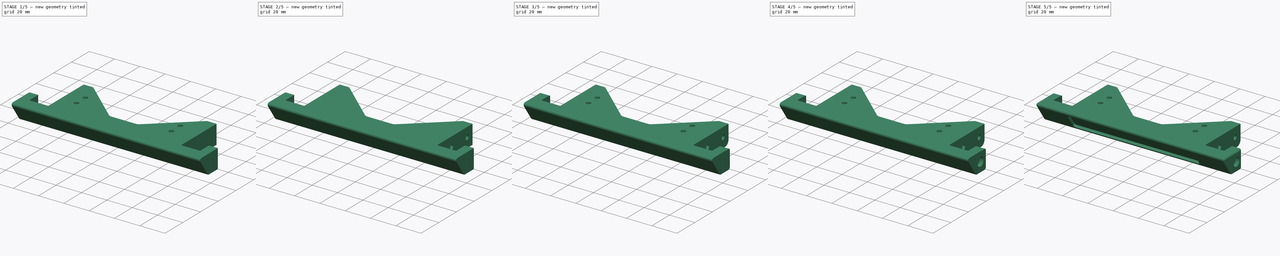
[diagram: build sequence overview — one tinted view per stage of 5, left to right]
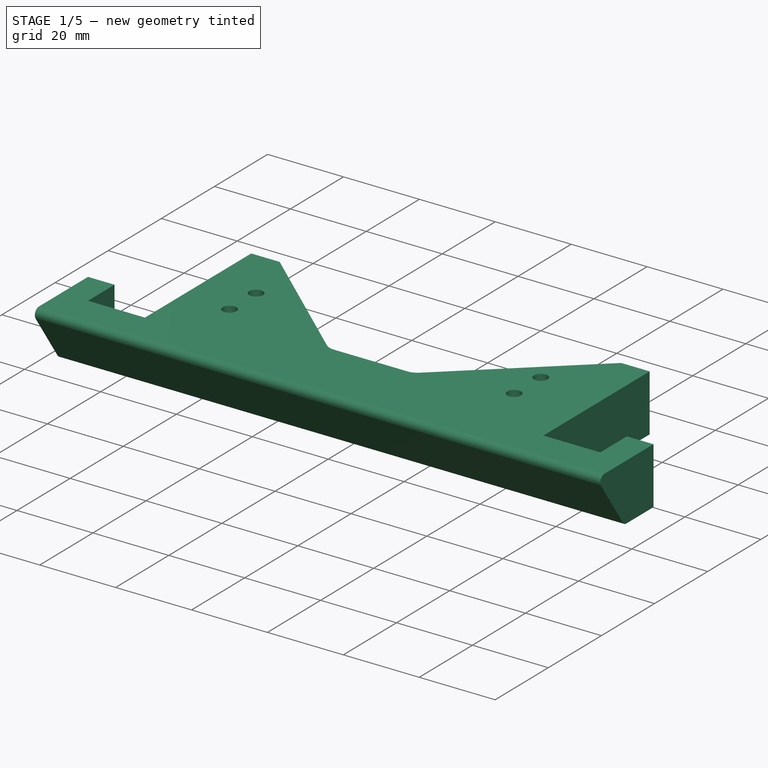
[diagram: stage 1 of 5 — iso view after this stage's code; geometry added in this stage tinted green]
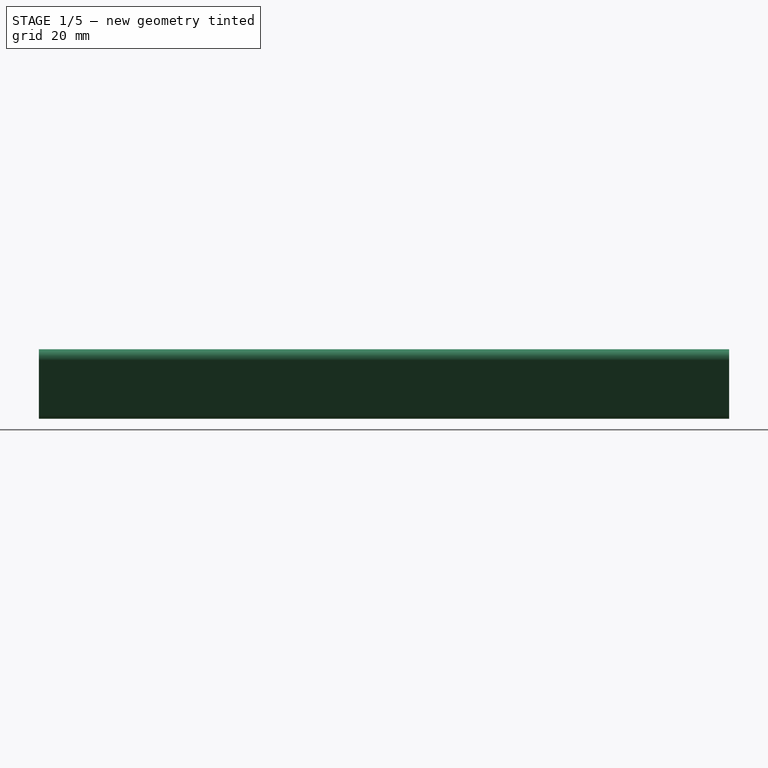
[diagram: stage 1 of 5 — front view after this stage's code; geometry added in this stage tinted green]
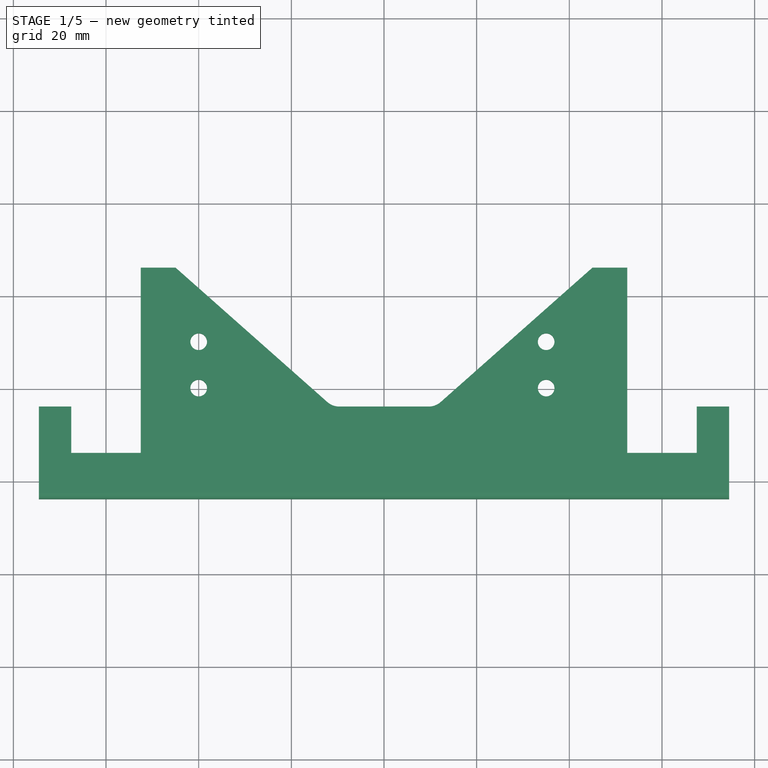
[diagram: stage 1 of 5 — top view after this stage's code; geometry added in this stage tinted green]
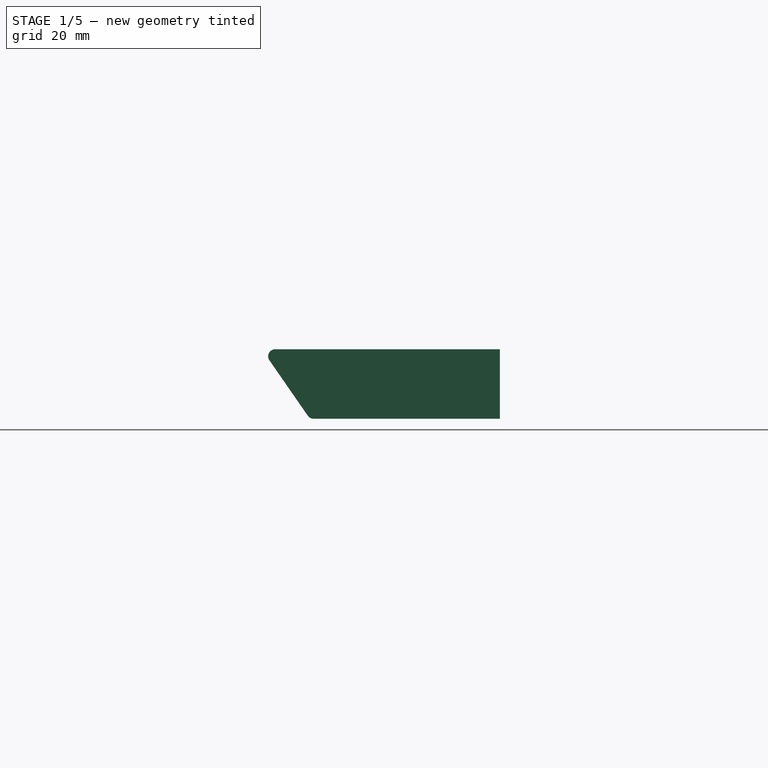
[diagram: stage 1 of 5 — right view after this stage's code; geometry added in this stage tinted green]
FCSTD DOCUMENT  (FreeCAD 0.15R4671 (Git))
Label: ZBedFrontCap
License: All rights reserved
LicenseURL: http://en.wikipedia.org/wiki/All_rights_reserved
objects: Sketcher::SketchObject×14, PartDesign::Pocket×12, Part::Feature×10, PartDesign::Fillet×9, PartDesign::Pad×2
note: 61 computed .brp shape members not serialized (recipe doc carries the construction recipe); baked Part::Feature solids carry a one-line shape summary decoded from their .brp

FEATURE [Part::Feature] Part__Feature  label="OB1515_270mm"
  Placement = pos=(-60,-44,42.5) rot=(1,0,0;1.5708rad)
  shape: bbox 15 x 270 x 15 mm, 158 faces (baked)
FEATURE [Part::Feature] Part__Feature001  label="OB1515_270mm001"
  Placement = pos=(60,-44,42.5) rot=(1,0,0;1.5708rad)
  shape: bbox 15 x 270 x 15 mm, 158 faces (baked)
FEATURE [Part::Feature] LM8UU_8mm_Linear_Bearing
  Placement = pos=(-60,-28,26) rot=(0,1,0;1.5708rad)
  shape: bbox 15 x 15 x 24 mm, 34 faces (baked)
FEATURE [Part::Feature] LM8UU_8mm_Linear_Bearing001
  Placement = pos=(60,-28,26) rot=(0,1,0;1.5708rad)
  shape: bbox 15 x 15 x 24 mm, 34 faces (baked)
FEATURE [Part::Feature] LM8UU_8mm_Linear_Bearing002
  Placement = pos=(-60,-28,53) rot=(0,1,0;1.5708rad)
  shape: bbox 15 x 15 x 24 mm, 34 faces (baked)
FEATURE [Part::Feature] LM8UU_8mm_Linear_Bearing003
  Placement = pos=(60,-28,53) rot=(0,1,0;1.5708rad)
  shape: bbox 15 x 15 x 24 mm, 34 faces (baked)
FEATURE [Part::Feature] Part__Feature002  label="ZBed"
  shape: bbox 325.9 x 65.72 x 128.5 mm, 185 faces (baked)
FEATURE [Part::Feature] Part__Feature003  label="ZBedBearingCapL"
  shape: bbox 33.5 x 13.5 x 55 mm, 30 faces (baked)
FEATURE [Part::Feature] Part__Feature004  label="ZBedBearingCapR"
  shape: bbox 33.5 x 13.5 x 55 mm, 30 faces (baked)
FEATURE [Sketcher::SketchObject] Sketch
  Placement = pos=(0,0,35) rot=(0,0,1;0rad)
  sketch-geometry (16):
    g0: LineSegment StartX=74.5 StartY=-304 StartZ=0 EndX=74.5 EndY=-324 EndZ=0
    g1: LineSegment StartX=74.5 StartY=-324 StartZ=0 EndX=-74.5 EndY=-324 EndZ=0
    g2: LineSegment StartX=-74.5 StartY=-324 StartZ=0 EndX=-74.5 EndY=-304 EndZ=0
    g3: LineSegment StartX=-52.5 StartY=-274 StartZ=0 EndX=-45.5 EndY=-274 EndZ=0
    g4: LineSegment StartX=-45.5 StartY=-274 StartZ=0 EndX=-45.5 EndY=-304 EndZ=0
    g5: LineSegment StartX=-45.5 StartY=-304 StartZ=0 EndX=45.5 EndY=-304 EndZ=0
    g6: LineSegment StartX=45.5 StartY=-304 StartZ=0 EndX=45.5 EndY=-274 EndZ=0
    g7: LineSegment StartX=45.5 StartY=-274 StartZ=0 EndX=52.5 EndY=-274 EndZ=0
    g8: LineSegment StartX=52.5 StartY=-274 StartZ=0 EndX=52.5 EndY=-314 EndZ=0
    g9: LineSegment StartX=-74.5 StartY=-304 StartZ=0 EndX=-67.5 EndY=-304 EndZ=0
    g10: LineSegment StartX=-67.5 StartY=-304 StartZ=0 EndX=-67.5 EndY=-314 EndZ=0
    g11: LineSegment StartX=-67.5 StartY=-314 StartZ=0 EndX=-52.5 EndY=-314 EndZ=0
    g12: LineSegment StartX=-52.5 StartY=-314 StartZ=0 EndX=-52.5 EndY=-274 EndZ=0
    g13: LineSegment StartX=52.5 StartY=-314 StartZ=0 EndX=67.5 EndY=-314 EndZ=0
    g14: LineSegment StartX=67.5 StartY=-314 StartZ=0 EndX=67.5 EndY=-304 EndZ=0
    g15: LineSegment StartX=67.5 StartY=-304 StartZ=0 EndX=74.5 EndY=-304 EndZ=0
  constraints (44):
    c: Coincident(g0,g1)
    c: Coincident(g1,g2)
    c: Horizontal(g1)
    c: Vertical(g0)
    c: Vertical(g2)
    c: Coincident(g3,g4)
    c: Coincident(g4,g5)
    c: Coincident(g5,g6)
    c: Coincident(g6,g7)
    c: Coincident(g7,g8)
    c: Horizontal(g3)
    c: Horizontal(g7)
    c: Horizontal(g5)
    c: Vertical(g4)
    c: Vertical(g6)
    c: Vertical(g8)
    c: DistanceY(g3,g6) = 0
    c: Coincident(g9,g10)
    c: Coincident(g10,g11)
    c: Coincident(g11,g12)
    c: Coincident(g3,g12)
    c: Coincident(g2,g9)
    c: Horizontal(g11)
    c: Vertical(g10)
    c: Vertical(g12)
    c: Coincident(g13,g14)
    c: Coincident(g14,g15)
    c: Coincident(g0,g15)
    c: Horizontal(g13)
    c: Horizontal(g15)
    c: Vertical(g14)
    c: DistanceY(g11,g8) = 0
    c: DistanceX(g11,g10) = -15
    c: DistanceX(g13,g13) = 15
    c: DistanceX(g0,g14) = -7
    c: DistanceX(g9,g2) = -7
    c: DistanceX(g3,g3) = -7
    c: DistanceX(g7,g6) = -7
    c: Coincident(g13,g8)
    c: DistanceX(g8,g11) = -105
    c: DistanceY(g4,g3) = 30
    c: DistanceY(g4,g9) = 0
    c: Horizontal(g9)
    c: DistanceY(g2,g1) = -20
FEATURE [PartDesign::Pad] Pad
  Length = 15
  Length2 = 100
  Placement = pos=(0,0,35) rot=(0,0,1;0rad)
  Sketch = -> Sketch
  Type = 0
FEATURE [Sketcher::SketchObject] Sketch001
  Placement = pos=(-74.5,0,35) rot=(0.57735,-0.57735,-0.57735;2.0944rad)
  Support = -> Pad [Face3]
  sketch-geometry (5):
    g0: LineSegment StartX=315 StartY=-1 StartZ=0 EndX=315 EndY=0 EndZ=0
    g1: LineSegment StartX=315 StartY=0 StartZ=0 EndX=324 EndY=13 EndZ=0
    g2: LineSegment StartX=324 StartY=13 StartZ=0 EndX=325 EndY=13 EndZ=0
    g3: LineSegment StartX=325 StartY=13 StartZ=0 EndX=325 EndY=-1 EndZ=0
    g4: LineSegment StartX=325 StartY=-1 StartZ=0 EndX=315 EndY=-1 EndZ=0
  constraints (5):
    c: Coincident(g0,g1)
    c: Coincident(g1,g2)
    c: Coincident(g2,g3)
    c: Coincident(g3,g4)
    c: Coincident(g4,g0)
FEATURE [PartDesign::Pocket] Pocket
  Length = 5
  Placement = pos=(0,0,35) rot=(0,0,1;0rad)
  Sketch = -> Sketch001
  Type = 1
FEATURE [PartDesign::Fillet] Fillet
  Base = -> Pocket [Edge6,Edge22,Edge24]
  Placement = pos=(0,0,35) rot=(0,0,1;0rad)
  Radius = 1.5
FEATURE [Sketcher::SketchObject] Sketch002
  Placement = pos=(-45.5,0,35) rot=(0.57735,0.57735,0.57735;2.0944rad)
  Support = -> Fillet [Face22]
  sketch-geometry (2):
    g0: Circle CenterX=-280 CenterY=7.5 CenterZ=0 NormalX=0 NormalY=0 NormalZ=1 Radius=1.8
    g1: Circle CenterX=-297.5 CenterY=7.5 CenterZ=0 NormalX=0 NormalY=0 NormalZ=1 Radius=1.8
  constraints (2):
    c: Radius(g0) = 1.8
    c: Equal(g0,g1)
FEATURE [PartDesign::Pocket] Pocket001
  Length = 5
  Placement = pos=(0,0,35) rot=(0,0,1;0rad)
  Sketch = -> Sketch002
  Type = 1
FEATURE [Part::Feature] Fillet009  label="ZBedFrontCap_1"
  shape: bbox 149 x 50.33 x 15.33 mm, 96 faces (baked)
FEATURE [Sketcher::SketchObject] Sketch013
  Placement = pos=(0,0,35) rot=(1,0,0;3.14159rad)
  Support = -> Fillet009 [Face1]
  sketch-geometry (8):
    g0: LineSegment StartX=52.25 StartY=314 StartZ=0 EndX=67.75 EndY=314 EndZ=0
    g1: LineSegment StartX=67.75 StartY=314 StartZ=0 EndX=67.75 EndY=271.601 EndZ=0
    g2: LineSegment StartX=67.75 StartY=271.601 StartZ=0 EndX=52.25 EndY=271.601 EndZ=0
    g3: LineSegment StartX=52.25 StartY=271.601 StartZ=0 EndX=52.25 EndY=314 EndZ=0
    g4: LineSegment StartX=-67.75 StartY=314 StartZ=0 EndX=-52.25 EndY=314 EndZ=0
    g5: LineSegment StartX=-52.25 StartY=314 StartZ=0 EndX=-52.25 EndY=269.123 EndZ=0
    g6: LineSegment StartX=-52.25 StartY=269.123 StartZ=0 EndX=-67.75 EndY=269.123 EndZ=0
    g7: LineSegment StartX=-67.75 StartY=269.123 StartZ=0 EndX=-67.75 EndY=314 EndZ=0
  constraints (16):
    c: Coincident(g0,g1)
    c: Coincident(g1,g2)
    c: Coincident(g2,g3)
    c: Coincident(g3,g0)
    c: Horizontal(g0)
    c: Horizontal(g2)
    c: Vertical(g1)
    c: Vertical(g3)
    c: Coincident(g4,g5)
    c: Coincident(g5,g6)
    c: Coincident(g6,g7)
    c: Coincident(g7,g4)
    c: Horizontal(g4)
    c: Horizontal(g6)
    c: Vertical(g5)
    c: Vertical(g7)
FEATURE [PartDesign::Pocket] Pocket011  label="ZBedFrontCap"
  Length = 5
  Sketch = -> Sketch013
  Type = 1
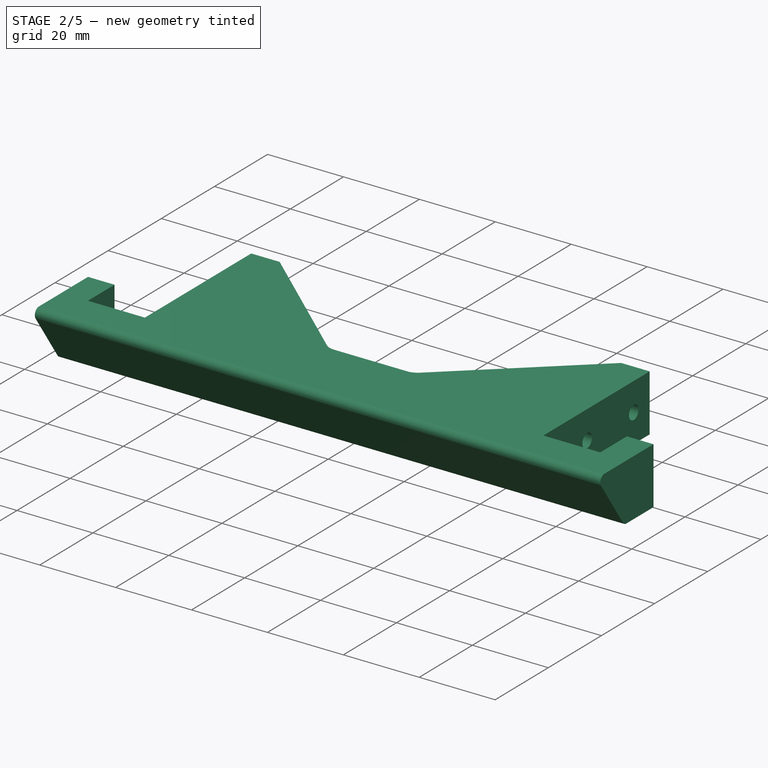
[diagram: stage 2 of 5 — iso view after this stage's code; geometry added in this stage tinted green]
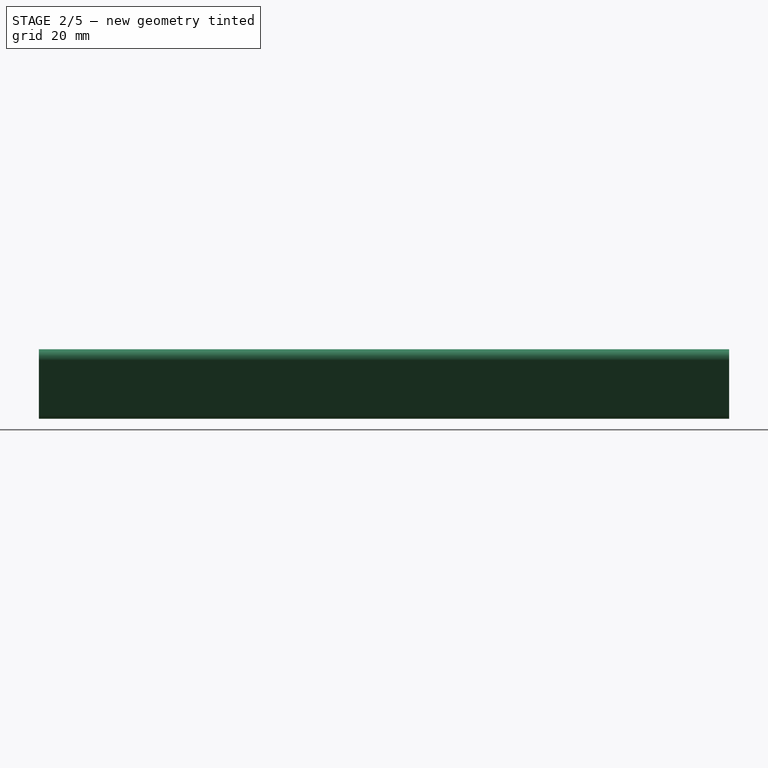
[diagram: stage 2 of 5 — front view after this stage's code; geometry added in this stage tinted green]
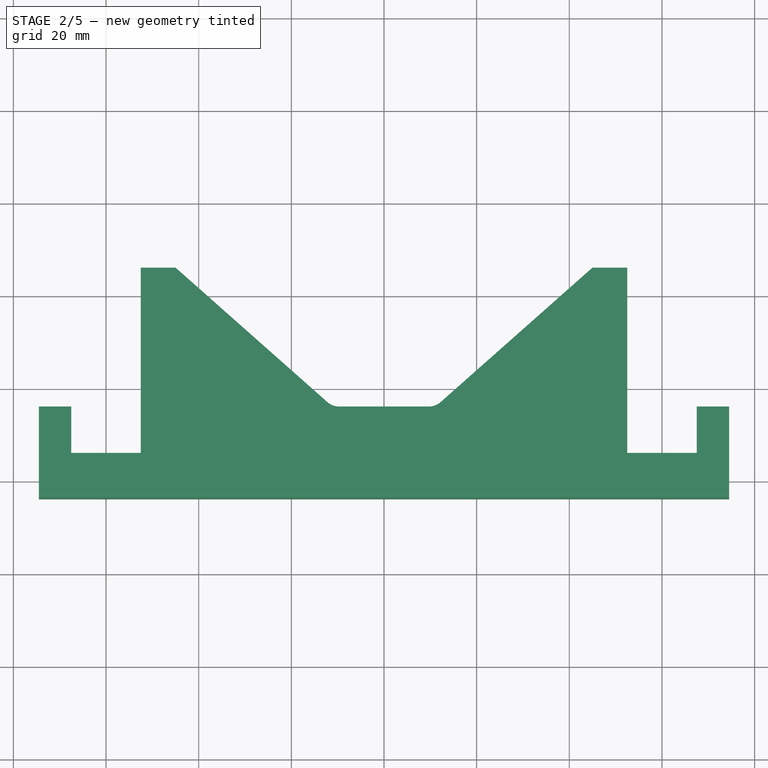
[diagram: stage 2 of 5 — top view after this stage's code; geometry added in this stage tinted green]
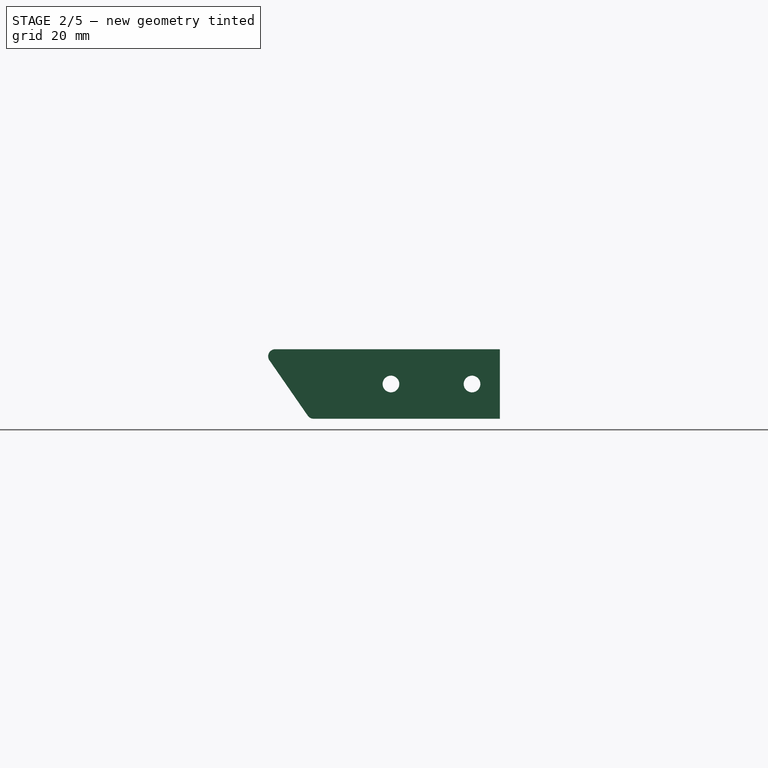
[diagram: stage 2 of 5 — right view after this stage's code; geometry added in this stage tinted green]
FEATURE [Sketcher::SketchObject] Sketch003
  Placement = pos=(45.5,0,35) rot=(0.57735,-0.57735,-0.57735;2.0944rad)
  Support = -> Pocket001 [Face19]
  sketch-geometry (2):
    g0: Circle CenterX=280 CenterY=7.5 CenterZ=0 NormalX=0 NormalY=0 NormalZ=1 Radius=1.8
    g1: Circle CenterX=297.5 CenterY=7.5 CenterZ=0 NormalX=0 NormalY=0 NormalZ=1 Radius=1.8
  constraints (2):
    c: Radius(g0) = 1.8
    c: Equal(g0,g1)
FEATURE [PartDesign::Pocket] Pocket002
  Length = 5
  Placement = pos=(0,0,35) rot=(0,0,1;0rad)
  Sketch = -> Sketch003
  Type = 1
FEATURE [Sketcher::SketchObject] Sketch004
  Placement = pos=(45.5,0,35) rot=(0.57735,-0.57735,-0.57735;2.0944rad)
  Support = -> Pocket002 [Face19]
  sketch-geometry (2):
    g0: Circle CenterX=280 CenterY=7.5 CenterZ=0 NormalX=0 NormalY=0 NormalZ=1 Radius=3.5
    g1: Circle CenterX=297.5 CenterY=7.5 CenterZ=0 NormalX=0 NormalY=0 NormalZ=1 Radius=3.5
  constraints (2):
    c: Radius(g0) = 3.5
    c: Equal(g0,g1)
FEATURE [PartDesign::Pocket] Pocket003
  Length = 3
  Placement = pos=(0,0,35) rot=(0,0,1;0rad)
  Sketch = -> Sketch004
  Type = 0
FEATURE [Sketcher::SketchObject] Sketch005
  Placement = pos=(-45.5,0,35) rot=(0.57735,0.57735,0.57735;2.0944rad)
  Support = -> Pocket003 [Face22]
  sketch-geometry (2):
    g0: Circle CenterX=-297.5 CenterY=7.5 CenterZ=0 NormalX=0 NormalY=0 NormalZ=1 Radius=3.5
    g1: Circle CenterX=-280 CenterY=7.5 CenterZ=0 NormalX=0 NormalY=0 NormalZ=1 Radius=3.5
  constraints (2):
    c: Radius(g0) = 3.5
    c: Equal(g0,g1)
FEATURE [PartDesign::Pocket] Pocket004
  Length = 3
  Placement = pos=(0,0,35) rot=(0,0,1;0rad)
  Sketch = -> Sketch005
  Type = 0
FEATURE [Sketcher::SketchObject] Sketch006
  Placement = pos=(0,0,50) rot=(0,0,1;0rad)
  Support = -> Pocket004 [Face6]
  sketch-geometry (8):
    g0: LineSegment StartX=-47 StartY=-274 StartZ=0 EndX=-47 EndY=-305 EndZ=0
    g1: LineSegment StartX=-47 StartY=-305 StartZ=0 EndX=-10 EndY=-305 EndZ=0
    g2: LineSegment StartX=-10 StartY=-305 StartZ=0 EndX=-45 EndY=-274 EndZ=0
    g3: LineSegment StartX=-45 StartY=-274 StartZ=0 EndX=-47 EndY=-274 EndZ=0
    g4: LineSegment StartX=10 StartY=-305 StartZ=0 EndX=47 EndY=-305 EndZ=0
    g5: LineSegment StartX=47 StartY=-305 StartZ=0 EndX=47 EndY=-274 EndZ=0
    g6: LineSegment StartX=47 StartY=-274 StartZ=0 EndX=45 EndY=-274 EndZ=0
    g7: LineSegment StartX=45 StartY=-274 StartZ=0 EndX=10 EndY=-305 EndZ=0
  constraints (8):
    c: Coincident(g0,g1)
    c: Coincident(g1,g2)
    c: Coincident(g2,g3)
    c: Coincident(g0,g3)
    c: Coincident(g4,g5)
    c: Coincident(g5,g6)
    c: Coincident(g6,g7)
    c: Coincident(g7,g4)
FEATURE [PartDesign::Pad] Pad001
  Length = 3
  Length2 = 100
  Placement = pos=(0,0,35) rot=(0,0,1;0rad)
  Reversed = true
  Sketch = -> Sketch006
  Type = 0
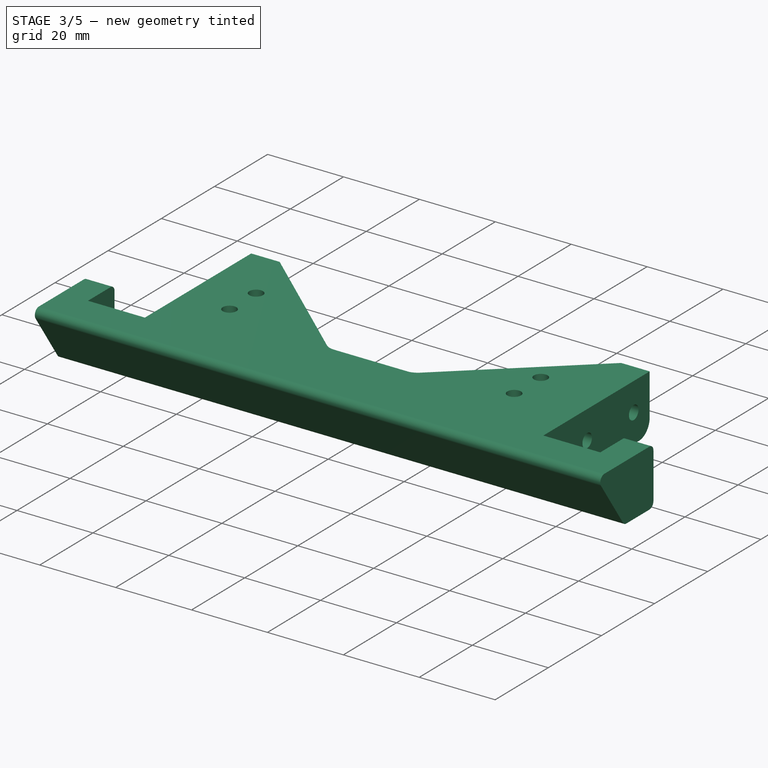
[diagram: stage 3 of 5 — iso view after this stage's code; geometry added in this stage tinted green]
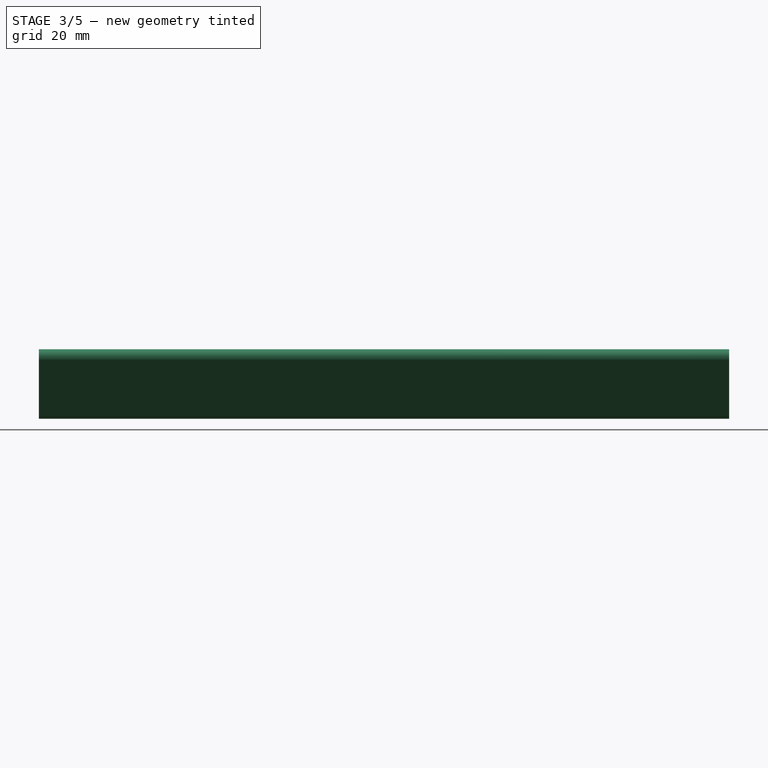
[diagram: stage 3 of 5 — front view after this stage's code; geometry added in this stage tinted green]
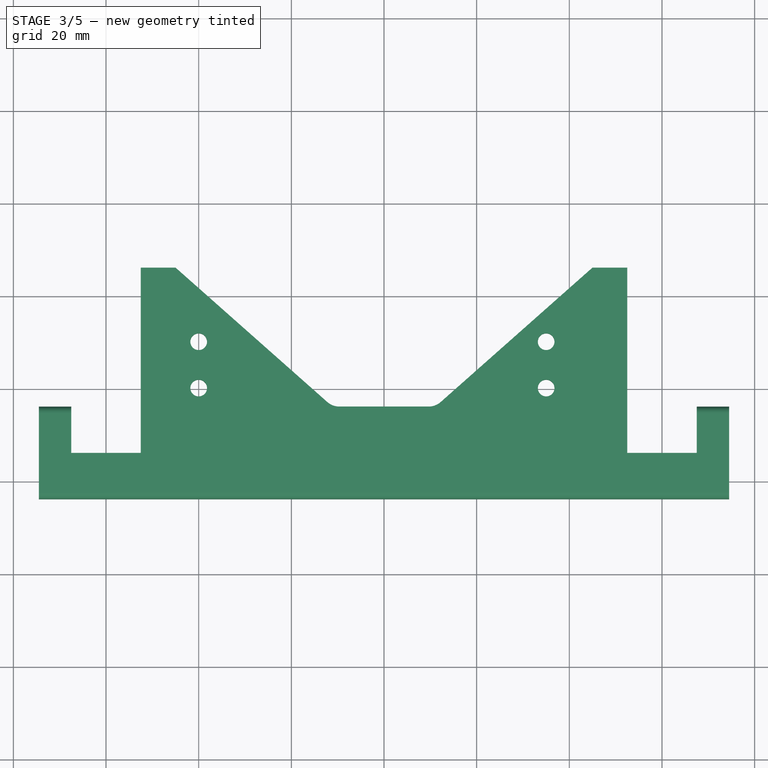
[diagram: stage 3 of 5 — top view after this stage's code; geometry added in this stage tinted green]
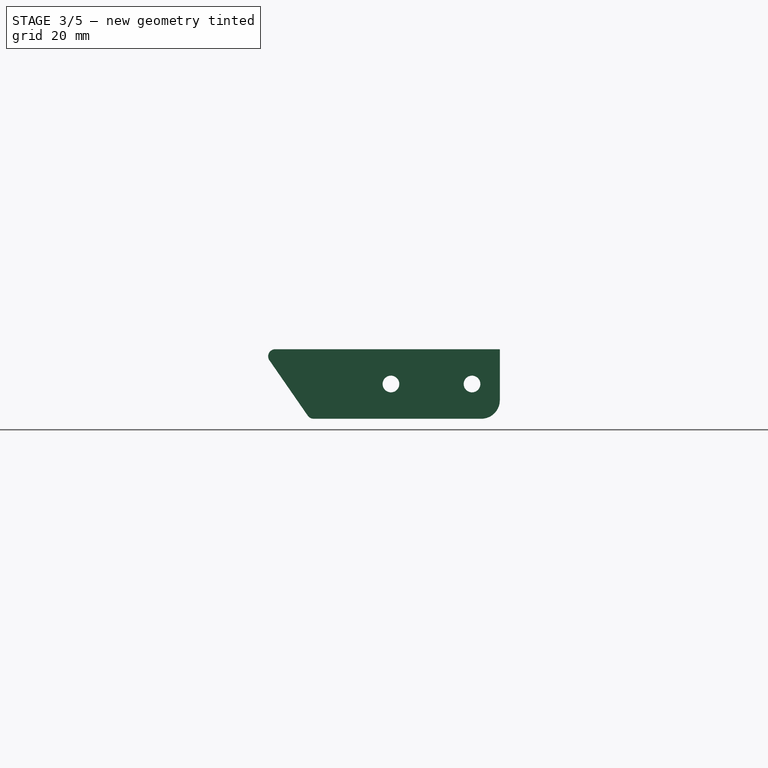
[diagram: stage 3 of 5 — right view after this stage's code; geometry added in this stage tinted green]
FEATURE [PartDesign::Fillet] Fillet001
  Base = -> Pad001 [Edge62,Edge64]
  Placement = pos=(0,0,35) rot=(0,0,1;0rad)
  Radius = 4
FEATURE [Sketcher::SketchObject] Sketch007
  Placement = pos=(0,0,47) rot=(1,0,0;3.14159rad)
  Support = -> Fillet001 [Face5]
  sketch-geometry (4):
    g0: Circle CenterX=-40 CenterY=300 CenterZ=0 NormalX=0 NormalY=0 NormalZ=1 Radius=1.8
    g1: Circle CenterX=35 CenterY=300 CenterZ=0 NormalX=0 NormalY=0 NormalZ=1 Radius=1.8
    g2: Circle CenterX=-40 CenterY=290 CenterZ=0 NormalX=0 NormalY=0 NormalZ=1 Radius=1.8
    g3: Circle CenterX=35 CenterY=290 CenterZ=0 NormalX=0 NormalY=0 NormalZ=1 Radius=1.8
  constraints (4):
    c: Radius(g0) = 1.8
    c: Equal(g0,g1)
    c: Radius(g3) = 1.8
    c: Equal(g3,g2)
FEATURE [PartDesign::Pocket] Pocket005
  Length = 5
  Placement = pos=(0,0,35) rot=(0,0,1;0rad)
  Sketch = -> Sketch007
  Type = 0
FEATURE [PartDesign::Fillet] Fillet002
  Base = -> Pocket005 [Edge70,Edge68]
  Placement = pos=(0,0,35) rot=(0,0,1;0rad)
  Radius = 4
FEATURE [PartDesign::Fillet] Fillet003
  Base = -> Fillet002 [Edge21,Edge86,Edge14,Edge64]
  Placement = pos=(0,0,35) rot=(0,0,1;0rad)
  Radius = 1.5
FEATURE [PartDesign::Fillet] Fillet004
  Base = -> Fillet003 [Edge65,Edge51]
  Placement = pos=(0,0,35) rot=(0,0,1;0rad)
  Radius = 2
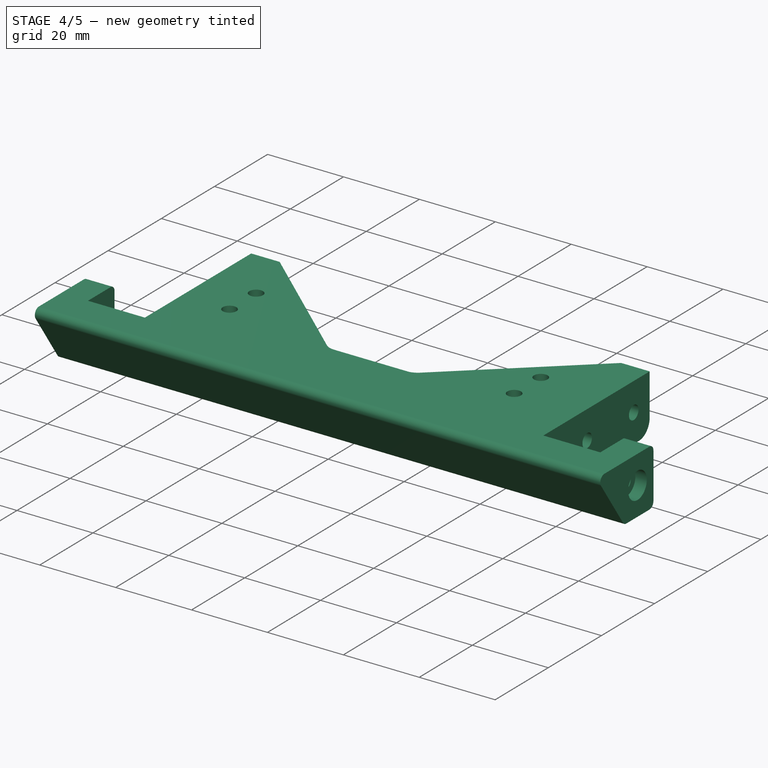
[diagram: stage 4 of 5 — iso view after this stage's code; geometry added in this stage tinted green]
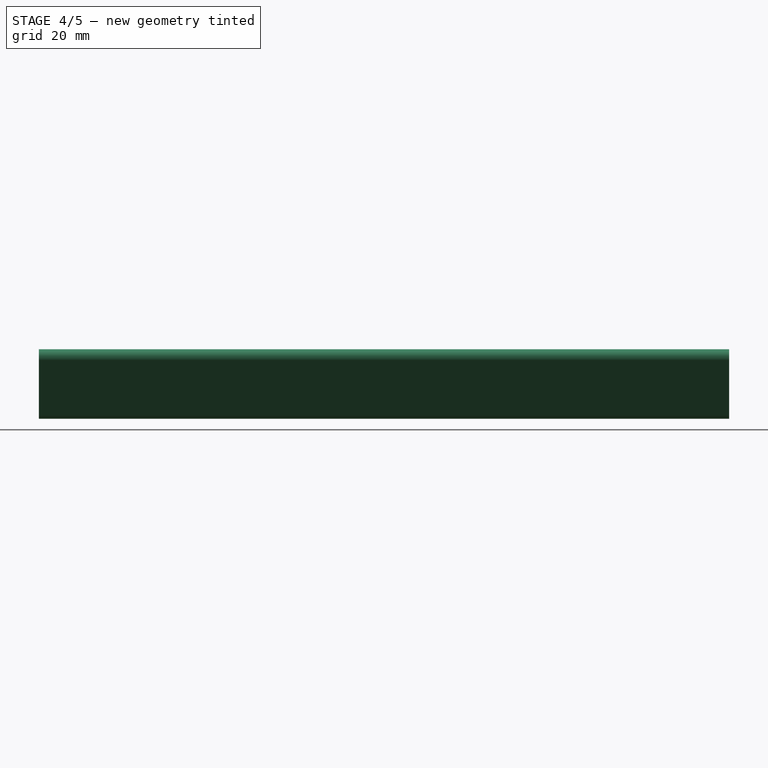
[diagram: stage 4 of 5 — front view after this stage's code; geometry added in this stage tinted green]
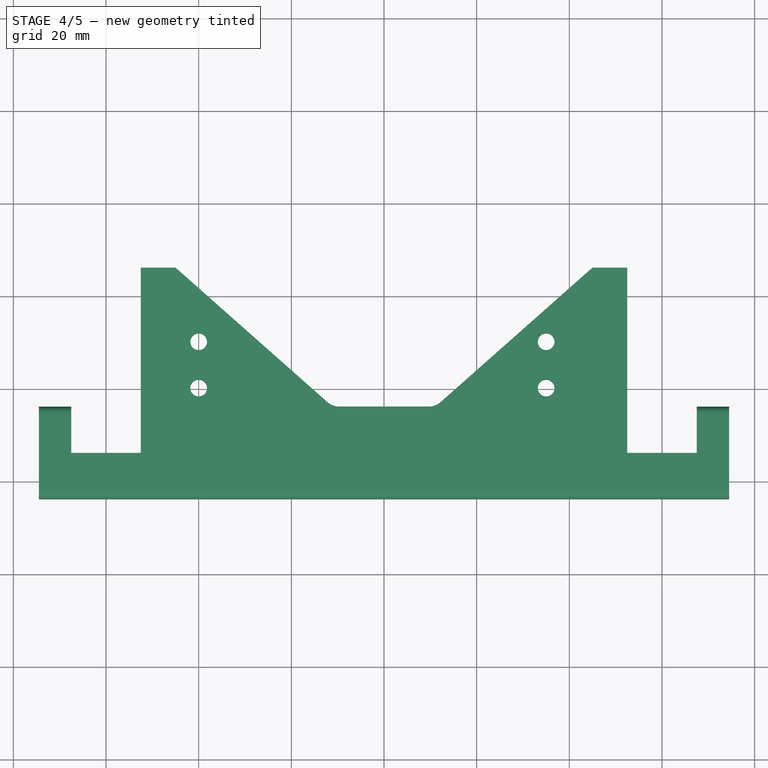
[diagram: stage 4 of 5 — top view after this stage's code; geometry added in this stage tinted green]
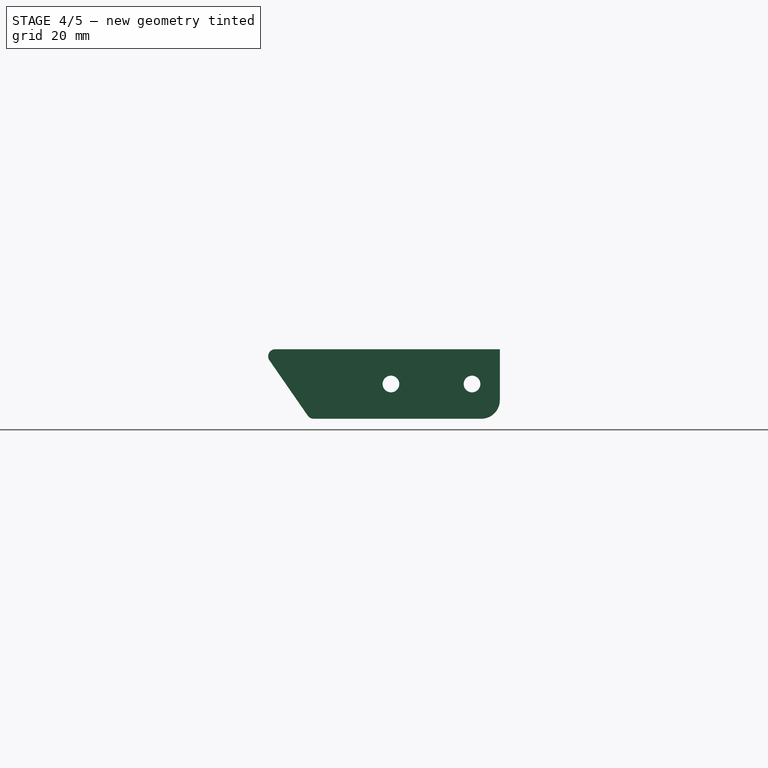
[diagram: stage 4 of 5 — right view after this stage's code; geometry added in this stage tinted green]
FEATURE [Sketcher::SketchObject] Sketch008
  Placement = pos=(-74.5,0,35) rot=(0.57735,-0.57735,-0.57735;2.0944rad)
  Support = -> Fillet004 [Face18]
  sketch-geometry (1):
    g0: Circle CenterX=310 CenterY=7.5 CenterZ=0 NormalX=0 NormalY=0 NormalZ=1 Radius=1.8
  constraints (1):
    c: Radius(g0) = 1.8
FEATURE [PartDesign::Pocket] Pocket006
  Length = 10
  Placement = pos=(0,0,35) rot=(0,0,1;0rad)
  Sketch = -> Sketch008
  Type = 0
FEATURE [Sketcher::SketchObject] Sketch009
  Placement = pos=(74.5,0,35) rot=(0.57735,0.57735,0.57735;2.0944rad)
  Support = -> Pocket006 [Face14]
  sketch-geometry (1):
    g0: Circle CenterX=-310 CenterY=7.5 CenterZ=0 NormalX=0 NormalY=0 NormalZ=1 Radius=1.8
  constraints (1):
    c: Radius(g0) = 1.8
FEATURE [PartDesign::Pocket] Pocket007
  Length = 10
  Placement = pos=(0,0,35) rot=(0,0,1;0rad)
  Sketch = -> Sketch009
  Type = 0
FEATURE [Sketcher::SketchObject] Sketch010
  Placement = pos=(74.5,0,35) rot=(0.57735,0.57735,0.57735;2.0944rad)
  Support = -> Pocket007 [Face14]
  sketch-geometry (1):
    g0: Circle CenterX=-310 CenterY=7.5 CenterZ=0 NormalX=0 NormalY=0 NormalZ=1 Radius=3.5
  constraints (1):
    c: Radius(g0) = 3.5
FEATURE [PartDesign::Pocket] Pocket008
  Length = 3
  Placement = pos=(0,0,35) rot=(0,0,1;0rad)
  Sketch = -> Sketch010
  Type = 0
FEATURE [Sketcher::SketchObject] Sketch011
  Placement = pos=(-74.5,0,35) rot=(0.57735,-0.57735,-0.57735;2.0944rad)
  Support = -> Pocket008 [Face18]
  sketch-geometry (1):
    g0: Circle CenterX=310 CenterY=7.5 CenterZ=0 NormalX=0 NormalY=0 NormalZ=1 Radius=3.5
  constraints (1):
    c: Radius(g0) = 3.5
FEATURE [PartDesign::Pocket] Pocket009
  Length = 3
  Placement = pos=(0,0,35) rot=(0,0,1;0rad)
  Sketch = -> Sketch011
  Type = 0
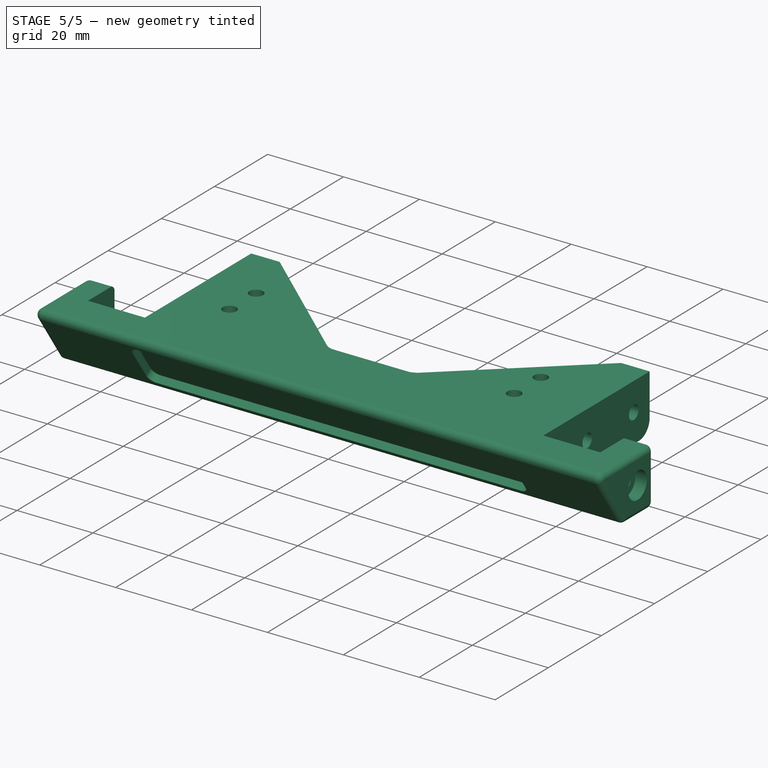
[diagram: stage 5 of 5 — iso view after this stage's code; geometry added in this stage tinted green]
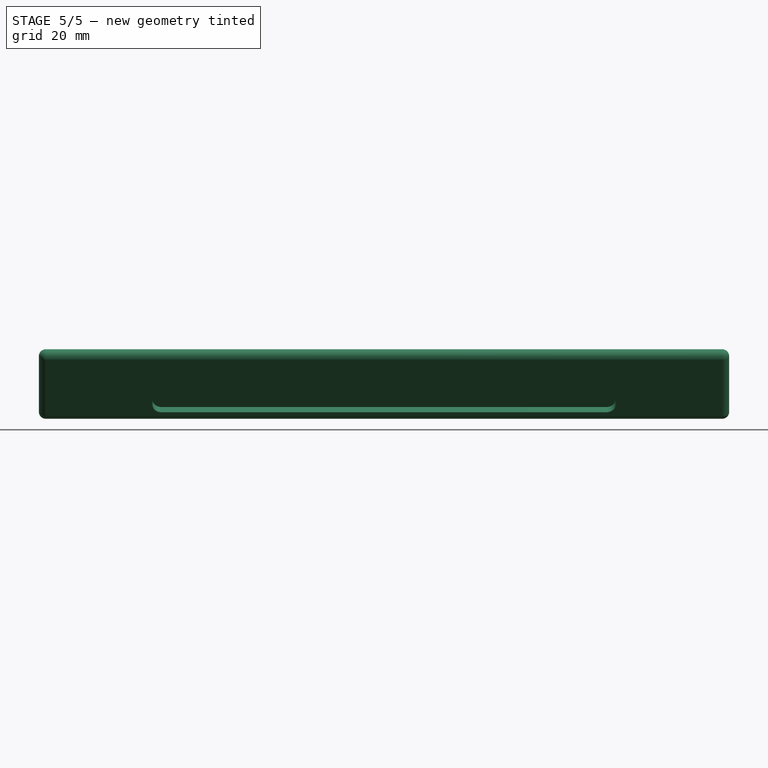
[diagram: stage 5 of 5 — front view after this stage's code; geometry added in this stage tinted green]
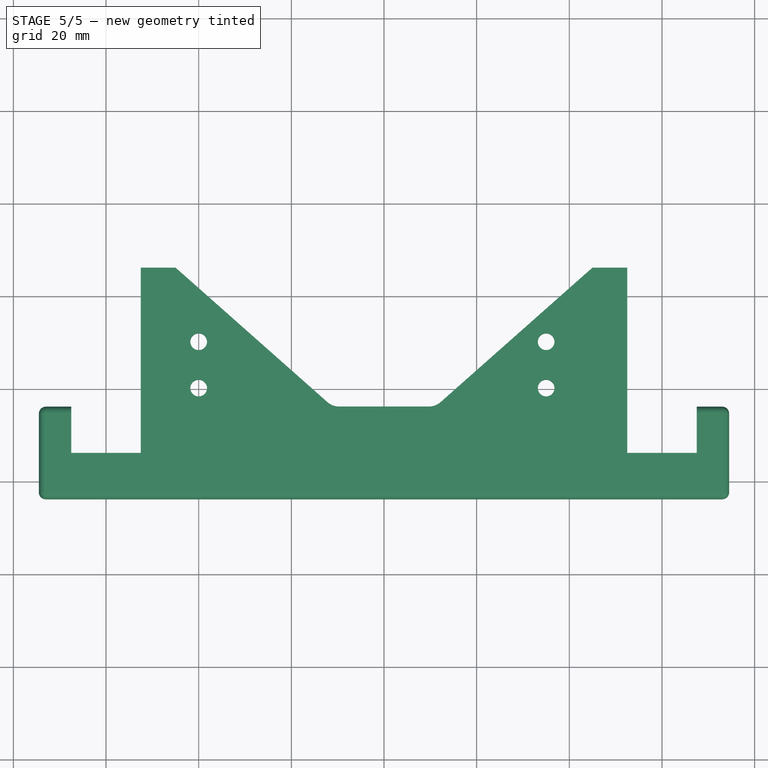
[diagram: stage 5 of 5 — top view after this stage's code; geometry added in this stage tinted green]
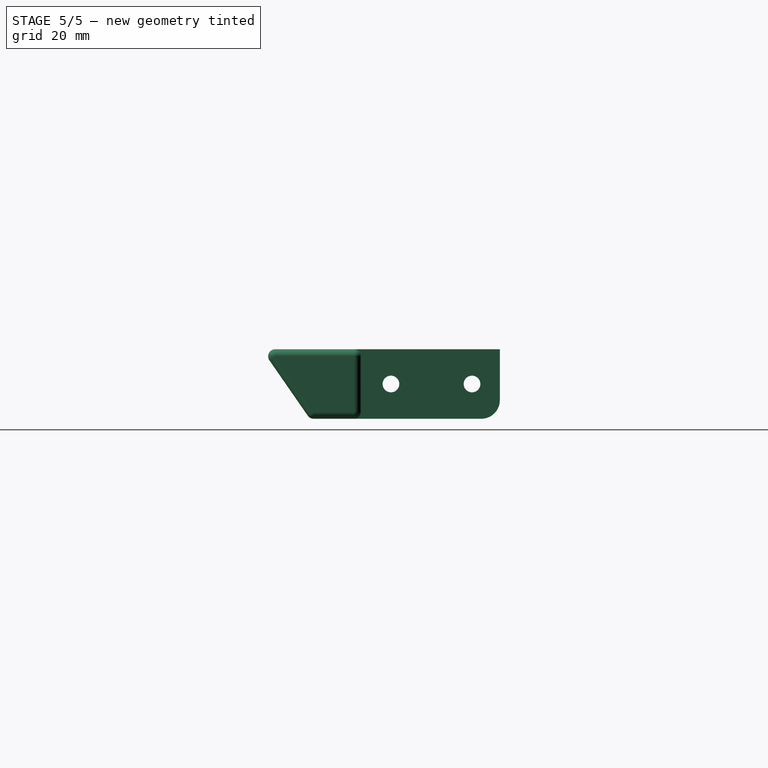
[diagram: stage 5 of 5 — right view after this stage's code; geometry added in this stage tinted green]
FEATURE [Sketcher::SketchObject] Sketch012
  Placement = pos=(0,-212.94,-112.42) rot=(1,0,0;2.17634rad)
  Support = -> Pocket009 [Face38]
  sketch-geometry (4):
    g0: LineSegment StartX=-50 StartY=194 StartZ=0 EndX=50 EndY=194 EndZ=0
    g1: LineSegment StartX=50 StartY=194 StartZ=0 EndX=50 EndY=181 EndZ=0
    g2: LineSegment StartX=50 StartY=181 StartZ=0 EndX=-50 EndY=181 EndZ=0
    g3: LineSegment StartX=-50 StartY=181 StartZ=0 EndX=-50 EndY=194 EndZ=0
  constraints (8):
    c: Coincident(g0,g1)
    c: Coincident(g1,g2)
    c: Coincident(g2,g3)
    c: Coincident(g3,g0)
    c: Horizontal(g0)
    c: Horizontal(g2)
    c: Vertical(g1)
    c: Vertical(g3)
FEATURE [PartDesign::Pocket] Pocket010
  Length = 2
  Placement = pos=(0,0,35) rot=(0,0,1;0rad)
  Sketch = -> Sketch012
  Type = 0
FEATURE [PartDesign::Fillet] Fillet005
  Base = -> Pocket010 [Edge161,Edge164,Edge166,Edge163]
  Placement = pos=(0,0,35) rot=(0,0,1;0rad)
  Radius = 2
FEATURE [PartDesign::Fillet] Fillet006
  Base = -> Fillet005 [Edge44]
  Placement = pos=(0,0,35) rot=(0,0,1;0rad)
  Radius = 1.5
FEATURE [PartDesign::Fillet] Fillet007
  Base = -> Fillet006 [Edge20]
  Placement = pos=(0,0,35) rot=(0,0,1;0rad)
  Radius = 1.5
FEATURE [PartDesign::Fillet] Fillet008
  Base = -> Fillet007 [Edge113]
  Placement = pos=(0,0,35) rot=(0,0,1;0rad)
  Radius = 2
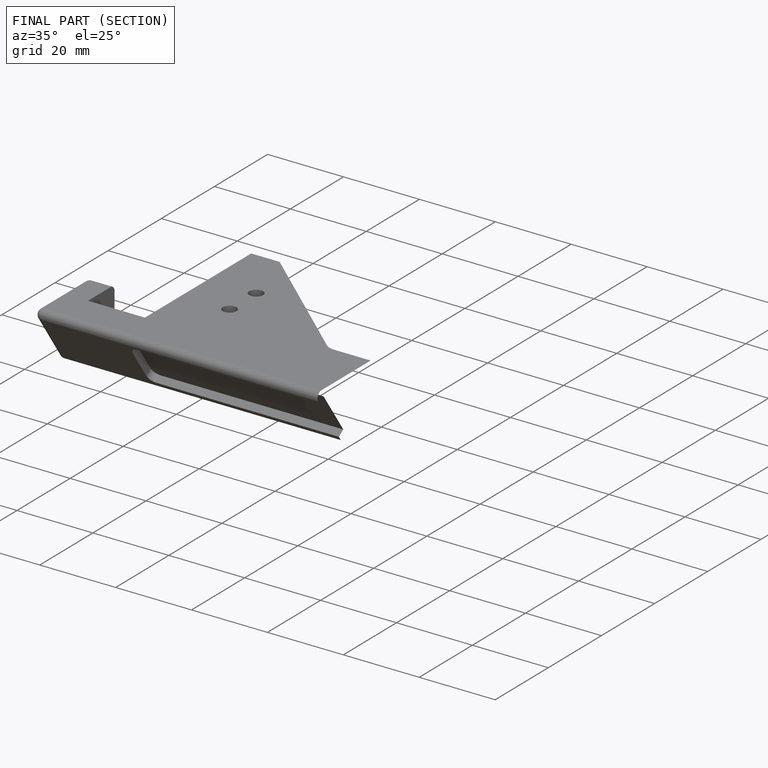
[diagram: finished part — half-section view (interior)]
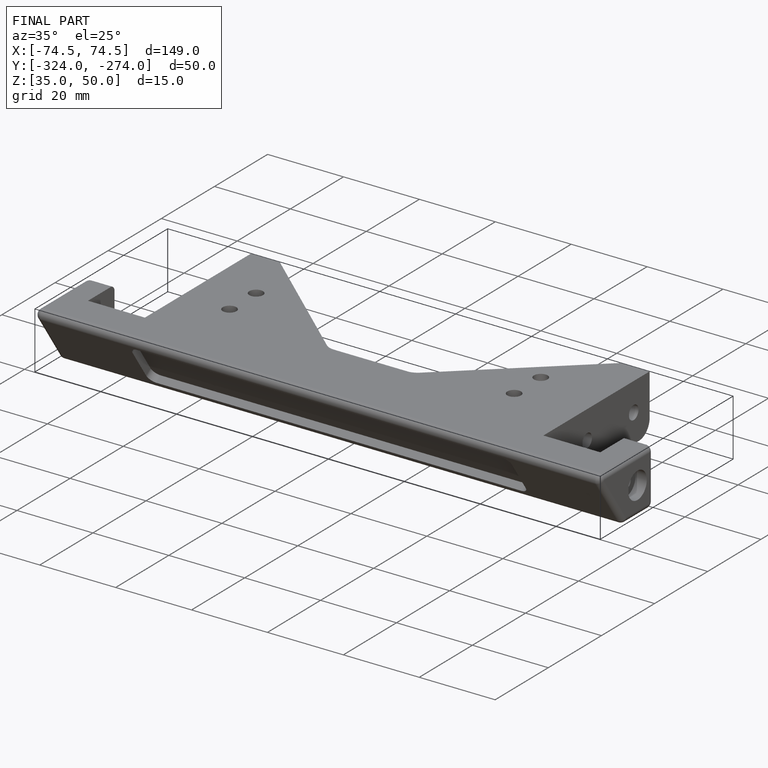
[diagram: finished part — iso view with bounding-box wireframe]
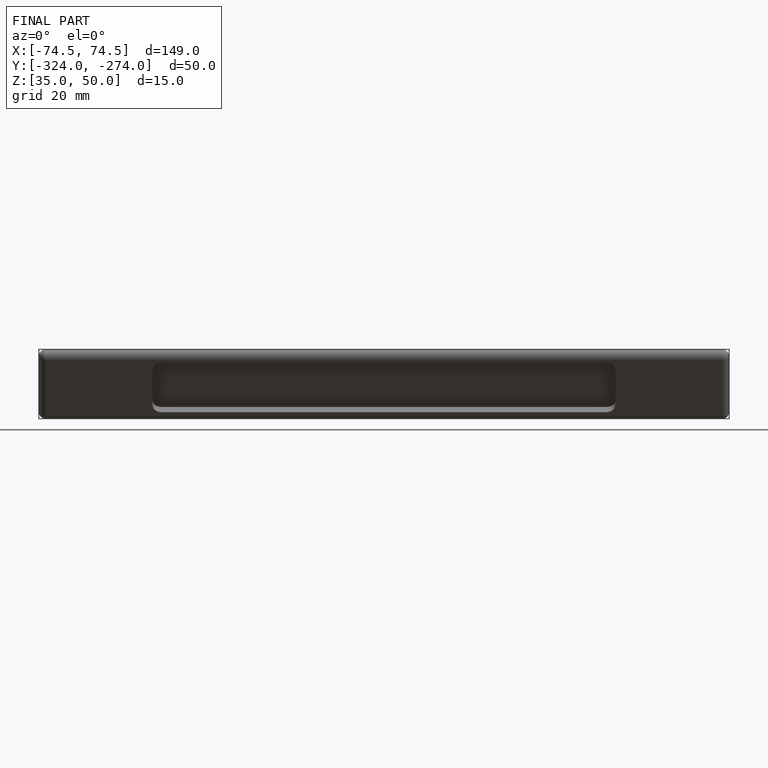
[diagram: finished part — front view with bounding-box wireframe]
